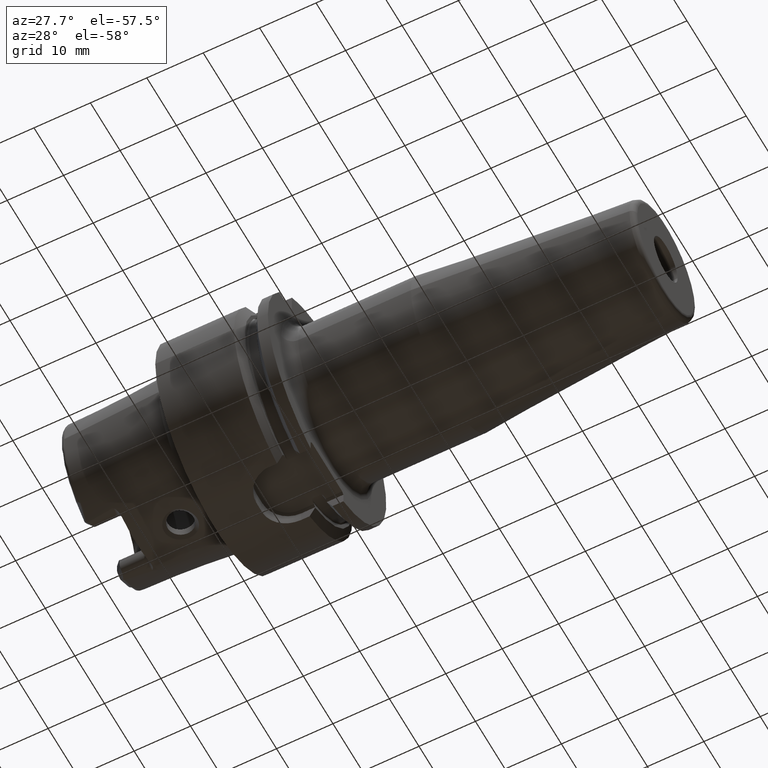
[diagram: clean part render]
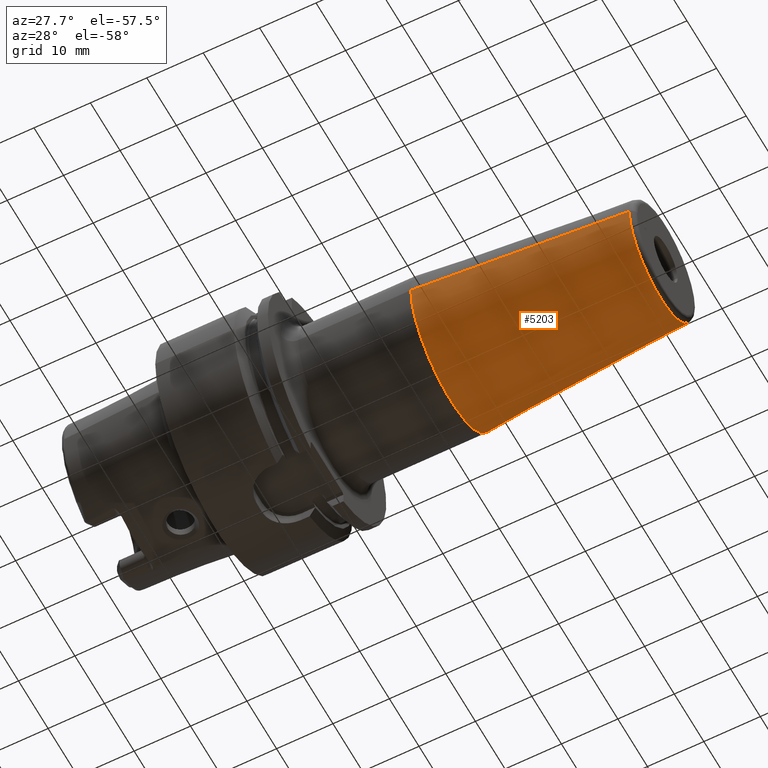
[diagram: same view with one face highlighted and labeled with its STEP entity id]
A machine part, auxiliary view. The second image highlights one B-rep face of the part: STEP entity #5203.
In plain terms, the highlighted conical surface has half-angle 4.5 deg.
Its self-contained STEP definition (entity closure, byte-faithful):
#1870=CARTESIAN_POINT('',(4.188138579148E1,0.E0,0.E0));
#1871=DIRECTION('',(-1.E0,0.E0,0.E0));
#1872=DIRECTION('',(0.E0,1.E0,0.E0));
#1873=AXIS2_PLACEMENT_3D('',#1870,#1871,#1872);
#1879=CARTESIAN_POINT('',(7.907845909573E1,0.E0,0.E0));
#1880=DIRECTION('',(-1.E0,0.E0,0.E0));
#1881=DIRECTION('',(0.E0,1.E0,0.E0));
#1882=AXIS2_PLACEMENT_3D('',#1879,#1880,#1881);
#1884=DIRECTION('',(-9.969173337331E-1,7.845909572785E-2,2.492570131127E-14));
#1885=VECTOR('',#1884,3.731209403789E1);
#1886=CARTESIAN_POINT('',(7.907845909573E1,1.057252684207E1,
-9.283768381077E-13));
#1887=LINE('',#1886,#1885);
#1888=DIRECTION('',(-9.969173337331E-1,-7.845909572785E-2,-2.491702610053E-14));
#1889=VECTOR('',#1888,3.731209403789E1);
#1890=CARTESIAN_POINT('',(7.907845909573E1,-1.057252684207E1,
9.280531478288E-13));
#1891=LINE('',#1890,#1889);
#3160=CARTESIAN_POINT('',(4.188138579148E1,1.35E1,0.E0));
#3161=CARTESIAN_POINT('',(4.188138579148E1,-1.35E1,0.E0));
#3162=VERTEX_POINT('',#3160);
#3163=VERTEX_POINT('',#3161);
#3172=CARTESIAN_POINT('',(7.907845909573E1,1.057252684207E1,0.E0));
#3173=CARTESIAN_POINT('',(7.907845909573E1,-1.057252684207E1,0.E0));
#3174=VERTEX_POINT('',#3172);
#3175=VERTEX_POINT('',#3173);
#5189=CARTESIAN_POINT('',(6.047992244360E1,0.E0,0.E0));
#5190=DIRECTION('',(-1.E0,0.E0,0.E0));
#5191=DIRECTION('',(0.E0,1.E0,0.E0));
#5192=AXIS2_PLACEMENT_3D('',#5189,#5190,#5191);
#5193=CONICAL_SURFACE('',#5192,1.203626342104E1,4.5E0);
#5195=ORIENTED_EDGE('',*,*,#5194,.F.);
#5197=ORIENTED_EDGE('',*,*,#5196,.T.);
#5198=ORIENTED_EDGE('',*,*,#5183,.T.);
#5200=ORIENTED_EDGE('',*,*,#5199,.F.);
#5201=EDGE_LOOP('',(#5195,#5197,#5198,#5200));
#5202=FACE_OUTER_BOUND('',#5201,.F.);
#5203=ADVANCED_FACE('',(#5202),#5193,.T.);
#1874=CIRCLE('',#1873,1.35E1);
#1883=CIRCLE('',#1882,1.057252684207E1);
#5183=EDGE_CURVE('',#3162,#3163,#1874,.T.);
#5194=EDGE_CURVE('',#3174,#3175,#1883,.T.);
#5196=EDGE_CURVE('',#3174,#3162,#1887,.T.);
#5199=EDGE_CURVE('',#3175,#3163,#1891,.T.);